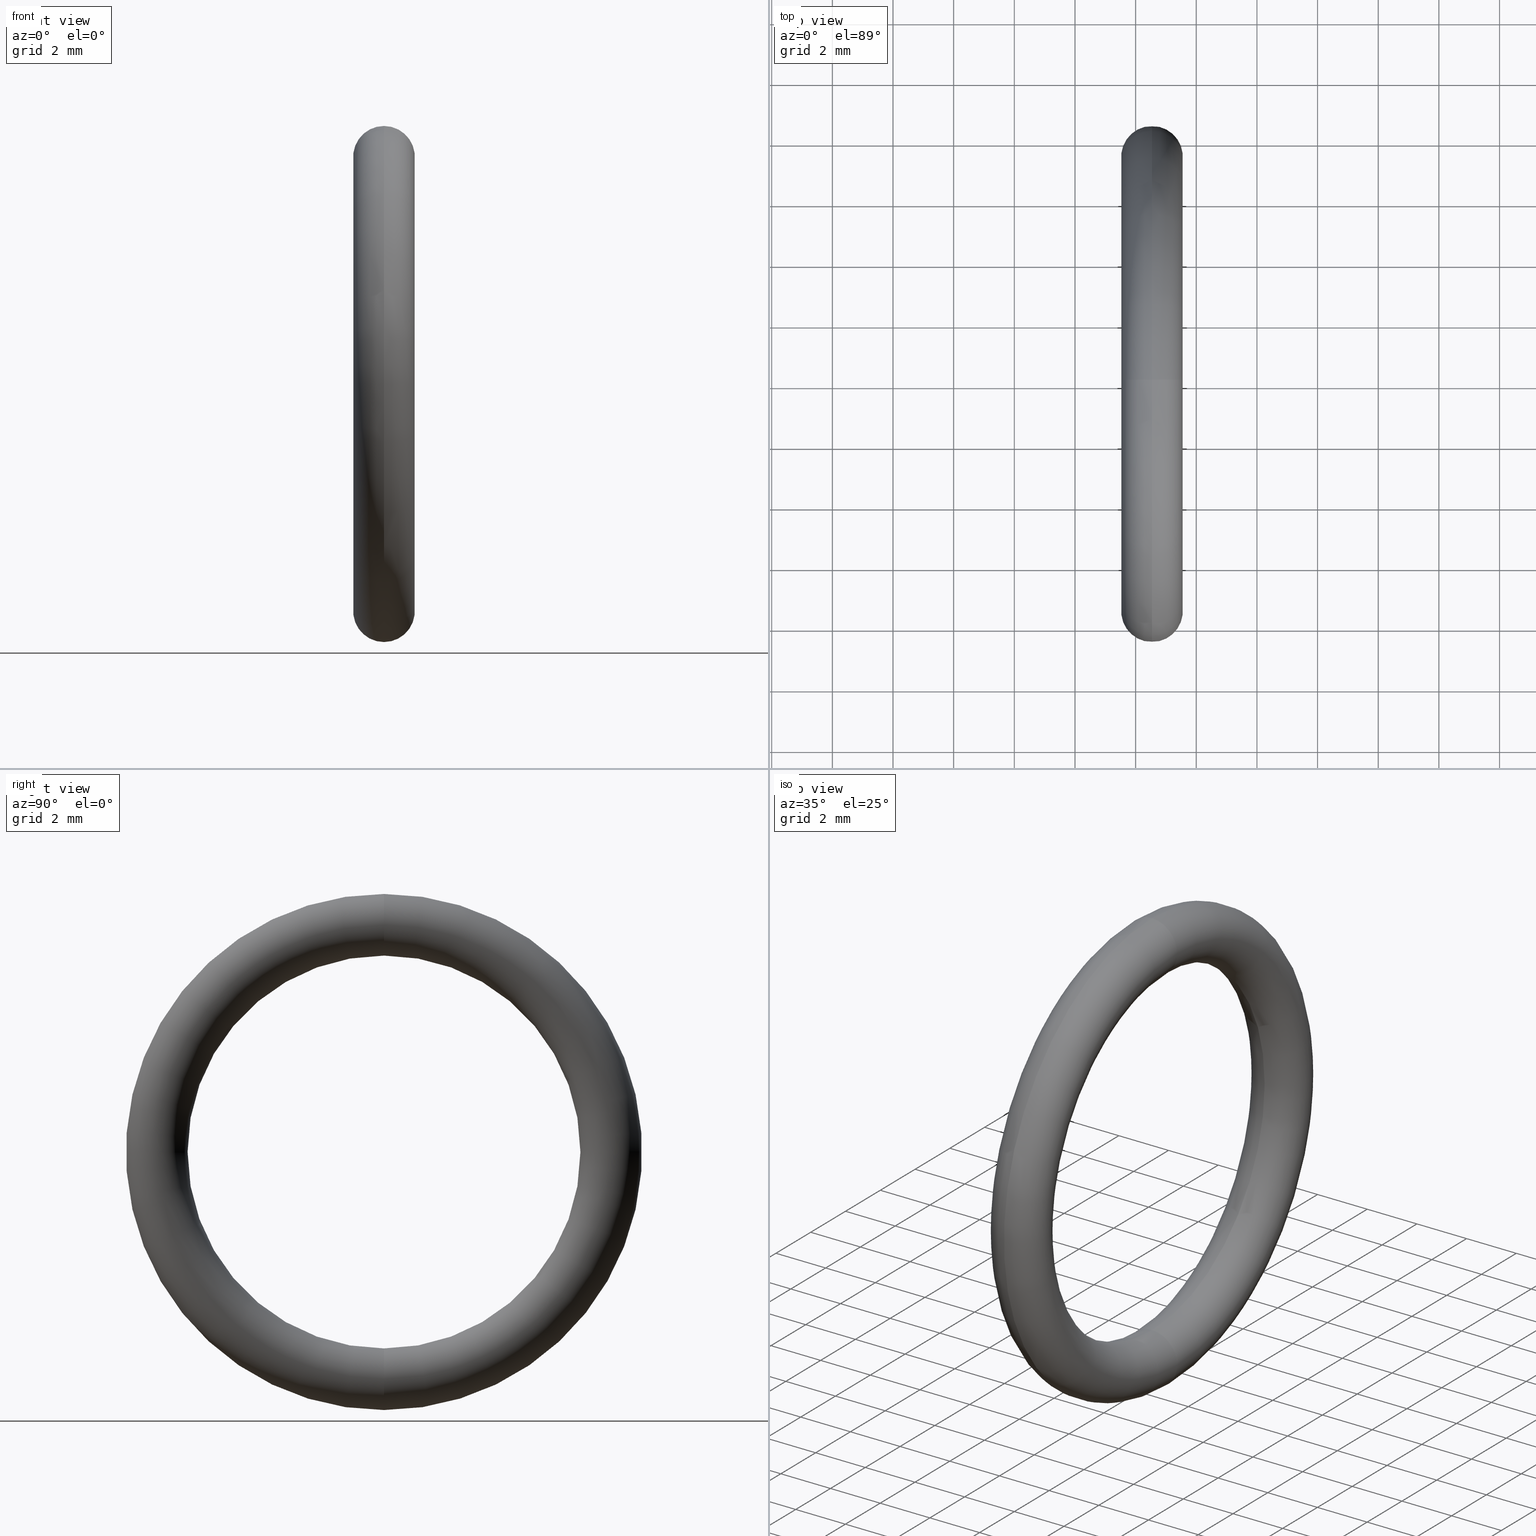
[diagram: canonical four-view strip — front | top / right | iso, engineering-drawing reading convention]
A machine part, canonical four-view strip (front | top / right | iso — engineering-drawing reading convention). The complete STEP part file that produces these views, byte-faithful:
ISO-10303-21;
HEADER;
FILE_DESCRIPTION (( 'STEP AP203' ),
    '1' );
FILE_NAME ('OR-38-VT.STEP',
    '2008-06-24T09:33:41',
    ( 'BSI05' ),
    ( 'BAYSTATE' ),
    'SwSTEP 2.0',
    'SolidWorks 2007',
    '' );
FILE_SCHEMA (( 'CONFIG_CONTROL_DESIGN' ));
ENDSEC;

DATA;
#1 =( GEOMETRIC_REPRESENTATION_CONTEXT ( 3 ) GLOBAL_UNCERTAINTY_ASSIGNED_CONTEXT ( ( #2 ) ) GLOBAL_UNIT_ASSIGNED_CONTEXT ( ( #5, #4, #3 ) ) REPRESENTATION_CONTEXT ( 'NONE', 'WORKASPACE' ) );
#2 = UNCERTAINTY_MEASURE_WITH_UNIT (LENGTH_MEASURE( 1.000000000000000100E-005 ), #5, 'distance_accuracy_value', 'NONE');
#3 =( NAMED_UNIT ( * ) SI_UNIT ( $, .STERADIAN. ) SOLID_ANGLE_UNIT ( ) );
#4 =( NAMED_UNIT ( * ) PLANE_ANGLE_UNIT ( ) SI_UNIT ( $, .RADIAN. ) );
#5 =( CONVERSION_BASED_UNIT ( 'INCH', #6 ) LENGTH_UNIT ( ) NAMED_UNIT ( #7 ) );
#6 = LENGTH_MEASURE_WITH_UNIT ( LENGTH_MEASURE( 0.02539999999999999900 ), #68 );
#7 = DIMENSIONAL_EXPONENTS ( 1.000000000000000000, 0.0000000000000000000, 0.0000000000000000000, 0.0000000000000000000, 0.0000000000000000000, 0.0000000000000000000, 0.0000000000000000000 ) ;
#8 = DIRECTION ( 'NONE',  ( 0.0000000000000000000, 0.0000000000000000000, -1.000000000000000000 ) ) ;
#9 = DIRECTION ( 'NONE',  ( 0.0000000000000000000, -1.000000000000000000, 0.0000000000000000000 ) ) ;
#10 = AXIS2_PLACEMENT_3D ( 'NONE', #28, #9, #8 ) ;
#11 = CIRCLE ( 'NONE', #10, 0.03999999999999998000 ) ;
#12 = DIRECTION ( 'NONE',  ( -1.000000000000000000, 0.0000000000000000000, 0.0000000000000000000 ) ) ;
#13 = CARTESIAN_POINT ( 'NONE',  ( 0.1000000000000000500, 0.0000000000000000000, 0.0000000000000000000 ) ) ;
#14 = AXIS2_PLACEMENT_3D ( 'NONE', #13, #12, #103 ) ;
#15 = CIRCLE ( 'NONE', #14, 0.3349999999999999600 ) ;
#16 = FACE_OUTER_BOUND ( 'NONE', #53, .T. ) ;
#17 = CARTESIAN_POINT ( 'NONE',  ( 0.1000000000000000500, 4.102566777143632800E-017, -0.3349999999999999600 ) ) ;
#18 = CARTESIAN_POINT ( 'NONE',  ( 0.1000000000000000500, 3.122849337825750500E-017, -0.2550000000000000000 ) ) ;
#19 = DIRECTION ( 'NONE',  ( 0.0000000000000000000, -1.224646799147353900E-016, 1.000000000000000000 ) ) ;
#20 = DIRECTION ( 'NONE',  ( 0.0000000000000000000, 1.000000000000000000, 1.224646799147353200E-016 ) ) ;
#21 = CARTESIAN_POINT ( 'NONE',  ( 0.1000000000000000500, 3.612708057484692000E-017, -0.2949999999999999800 ) ) ;
#22 = AXIS2_PLACEMENT_3D ( 'NONE', #21, #20, #19 ) ;
#23 = VERTEX_POINT ( 'NONE', #45 ) ;
#24 = DIRECTION ( 'NONE',  ( 0.0000000000000000000, 0.0000000000000000000, 1.000000000000000000 ) ) ;
#25 = DIRECTION ( 'NONE',  ( -1.000000000000000000, 0.0000000000000000000, 0.0000000000000000000 ) ) ;
#26 = AXIS2_PLACEMENT_3D ( 'NONE', #33, #25, #24 ) ;
#27 = CIRCLE ( 'NONE', #26, 0.2550000000000000000 ) ;
#28 = CARTESIAN_POINT ( 'NONE',  ( 0.1000000000000000500, 0.0000000000000000000, 0.2949999999999999800 ) ) ;
#29 = DIRECTION ( 'NONE',  ( 0.0000000000000000000, 0.0000000000000000000, 1.000000000000000000 ) ) ;
#30 = DIRECTION ( 'NONE',  ( -1.000000000000000000, 0.0000000000000000000, 0.0000000000000000000 ) ) ;
#31 = AXIS2_PLACEMENT_3D ( 'NONE', #39, #30, #29 ) ;
#32 = CIRCLE ( 'NONE', #31, 0.2550000000000000000 ) ;
#33 = CARTESIAN_POINT ( 'NONE',  ( 0.1000000000000000500, 0.0000000000000000000, 0.0000000000000000000 ) ) ;
#34 = DIRECTION ( 'NONE',  ( 0.0000000000000000000, 0.0000000000000000000, 1.000000000000000000 ) ) ;
#35 = DIRECTION ( 'NONE',  ( -1.000000000000000000, 0.0000000000000000000, 0.0000000000000000000 ) ) ;
#36 = CARTESIAN_POINT ( 'NONE',  ( 0.1000000000000000500, 0.0000000000000000000, 0.0000000000000000000 ) ) ;
#37 = AXIS2_PLACEMENT_3D ( 'NONE', #36, #35, #34 ) ;
#38 = CIRCLE ( 'NONE', #37, 0.3349999999999999600 ) ;
#39 = CARTESIAN_POINT ( 'NONE',  ( 0.1000000000000000500, 0.0000000000000000000, 0.0000000000000000000 ) ) ;
#40 = DIRECTION ( 'NONE',  ( 0.0000000000000000000, 0.0000000000000000000, 1.000000000000000000 ) ) ;
#41 = DIRECTION ( 'NONE',  ( -1.000000000000000000, 0.0000000000000000000, 0.0000000000000000000 ) ) ;
#42 = CARTESIAN_POINT ( 'NONE',  ( 0.1000000000000000500, 0.0000000000000000000, 0.0000000000000000000 ) ) ;
#43 = AXIS2_PLACEMENT_3D ( 'NONE', #42, #41, #40 ) ;
#44 = CIRCLE ( 'NONE', #22, 0.03999999999999998000 ) ;
#45 = CARTESIAN_POINT ( 'NONE',  ( 0.1000000000000000500, 0.0000000000000000000, 0.2550000000000000000 ) ) ;
#46 = ORIENTED_EDGE ( 'NONE', *, *, #113, .T. ) ;
#47 = EDGE_CURVE ( 'NONE', #50, #48, #44, .T. ) ;
#48 = VERTEX_POINT ( 'NONE', #18 ) ;
#49 = ORIENTED_EDGE ( 'NONE', *, *, #47, .F. ) ;
#50 = VERTEX_POINT ( 'NONE', #17 ) ;
#51 = EDGE_CURVE ( 'NONE', #50, #57, #15, .T. ) ;
#52 = ADVANCED_FACE ( 'NONE', ( #16 ), #100, .T. ) ;
#53 = EDGE_LOOP ( 'NONE', ( #49, #114, #46, #111 ) ) ;
#54 = ORIENTED_EDGE ( 'NONE', *, *, #112, .T. ) ;
#55 = CLOSED_SHELL ( 'NONE', ( #52, #81, #78, #75 ) ) ;
#56 = EDGE_LOOP ( 'NONE', ( #86, #76, #54, #72 ) ) ;
#57 = VERTEX_POINT ( 'NONE', #101 ) ;
#58 = DIRECTION ( 'NONE',  ( 0.0000000000000000000, 0.0000000000000000000, 1.000000000000000000 ) ) ;
#59 = DIRECTION ( 'NONE',  ( -1.000000000000000000, 0.0000000000000000000, 0.0000000000000000000 ) ) ;
#60 = AXIS2_PLACEMENT_3D ( 'NONE', #63, #59, #58 ) ;
#61 = TOROIDAL_SURFACE ( 'NONE', #60, 0.2949999999999999800, 0.04000000000000000100 ) ;
#62 = FACE_OUTER_BOUND ( 'NONE', #79, .T. ) ;
#63 = CARTESIAN_POINT ( 'NONE',  ( 0.1000000000000000500, 0.0000000000000000000, 0.0000000000000000000 ) ) ;
#64 = DIRECTION ( 'NONE',  ( 0.0000000000000000000, 0.0000000000000000000, -1.000000000000000000 ) ) ;
#65 = DIRECTION ( 'NONE',  ( 0.0000000000000000000, -1.000000000000000000, 0.0000000000000000000 ) ) ;
#66 = AXIS2_PLACEMENT_3D ( 'NONE', #96, #65, #64 ) ;
#67 = FACE_OUTER_BOUND ( 'NONE', #56, .T. ) ;
#68 =( LENGTH_UNIT ( ) NAMED_UNIT ( * ) SI_UNIT ( $, .METRE. ) );
#69 = ORIENTED_EDGE ( 'NONE', *, *, #88, .T. ) ;
#70 = EDGE_LOOP ( 'NONE', ( #71, #69, #87, #83 ) ) ;
#71 = ORIENTED_EDGE ( 'NONE', *, *, #113, .F. ) ;
#72 = ORIENTED_EDGE ( 'NONE', *, *, #74, .T. ) ;
#73 = EDGE_CURVE ( 'NONE', #48, #50, #95, .T. ) ;
#74 = EDGE_CURVE ( 'NONE', #23, #57, #90, .T. ) ;
#75 = ADVANCED_FACE ( 'NONE', ( #67 ), #61, .T. ) ;
#76 = ORIENTED_EDGE ( 'NONE', *, *, #73, .F. ) ;
#77 = ORIENTED_EDGE ( 'NONE', *, *, #89, .T. ) ;
#78 = ADVANCED_FACE ( 'NONE', ( #62 ), #110, .T. ) ;
#79 = EDGE_LOOP ( 'NONE', ( #85, #80, #77, #84 ) ) ;
#80 = ORIENTED_EDGE ( 'NONE', *, *, #74, .F. ) ;
#81 = ADVANCED_FACE ( 'NONE', ( #109 ), #104, .T. ) ;
#82 = MANIFOLD_SOLID_BREP ( 'NONE', #55 ) ;
#83 = ORIENTED_EDGE ( 'NONE', *, *, #89, .F. ) ;
#84 = ORIENTED_EDGE ( 'NONE', *, *, #73, .T. ) ;
#85 = ORIENTED_EDGE ( 'NONE', *, *, #88, .F. ) ;
#86 = ORIENTED_EDGE ( 'NONE', *, *, #51, .F. ) ;
#87 = ORIENTED_EDGE ( 'NONE', *, *, #47, .T. ) ;
#88 = EDGE_CURVE ( 'NONE', #57, #50, #38, .T. ) ;
#89 = EDGE_CURVE ( 'NONE', #23, #48, #32, .T. ) ;
#90 = CIRCLE ( 'NONE', #66, 0.03999999999999998000 ) ;
#91 = DIRECTION ( 'NONE',  ( 0.0000000000000000000, -1.224646799147353900E-016, 1.000000000000000000 ) ) ;
#92 = DIRECTION ( 'NONE',  ( 0.0000000000000000000, 1.000000000000000000, 1.224646799147353200E-016 ) ) ;
#93 = CARTESIAN_POINT ( 'NONE',  ( 0.1000000000000000500, 3.612708057484692000E-017, -0.2949999999999999800 ) ) ;
#94 = AXIS2_PLACEMENT_3D ( 'NONE', #93, #92, #91 ) ;
#95 = CIRCLE ( 'NONE', #94, 0.03999999999999998000 ) ;
#96 = CARTESIAN_POINT ( 'NONE',  ( 0.1000000000000000500, 0.0000000000000000000, 0.2949999999999999800 ) ) ;
#97 = DIRECTION ( 'NONE',  ( 0.0000000000000000000, 0.0000000000000000000, 1.000000000000000000 ) ) ;
#98 = DIRECTION ( 'NONE',  ( -1.000000000000000000, 0.0000000000000000000, 0.0000000000000000000 ) ) ;
#99 = AXIS2_PLACEMENT_3D ( 'NONE', #102, #98, #97 ) ;
#100 = TOROIDAL_SURFACE ( 'NONE', #99, 0.2949999999999999800, 0.04000000000000000100 ) ;
#101 = CARTESIAN_POINT ( 'NONE',  ( 0.1000000000000000500, 0.0000000000000000000, 0.3349999999999999600 ) ) ;
#102 = CARTESIAN_POINT ( 'NONE',  ( 0.1000000000000000500, 0.0000000000000000000, 0.0000000000000000000 ) ) ;
#103 = DIRECTION ( 'NONE',  ( 0.0000000000000000000, 0.0000000000000000000, 1.000000000000000000 ) ) ;
#104 = TOROIDAL_SURFACE ( 'NONE', #43, 0.2949999999999999800, 0.04000000000000000100 ) ;
#105 = DIRECTION ( 'NONE',  ( 0.0000000000000000000, 0.0000000000000000000, 1.000000000000000000 ) ) ;
#106 = DIRECTION ( 'NONE',  ( -1.000000000000000000, 0.0000000000000000000, 0.0000000000000000000 ) ) ;
#107 = CARTESIAN_POINT ( 'NONE',  ( 0.1000000000000000500, 0.0000000000000000000, 0.0000000000000000000 ) ) ;
#108 = AXIS2_PLACEMENT_3D ( 'NONE', #107, #106, #105 ) ;
#109 = FACE_OUTER_BOUND ( 'NONE', #70, .T. ) ;
#110 = TOROIDAL_SURFACE ( 'NONE', #108, 0.2949999999999999800, 0.04000000000000000100 ) ;
#111 = ORIENTED_EDGE ( 'NONE', *, *, #112, .F. ) ;
#112 = EDGE_CURVE ( 'NONE', #48, #23, #27, .T. ) ;
#113 = EDGE_CURVE ( 'NONE', #57, #23, #11, .T. ) ;
#114 = ORIENTED_EDGE ( 'NONE', *, *, #51, .T. ) ;
#115 = PERSON_AND_ORGANIZATION ( #172, #192 ) ;
#116 = CC_DESIGN_APPROVAL ( #124, ( #127 ) ) ;
#117 = APPROVAL_DATE_TIME ( #118, #124 ) ;
#118 = DATE_AND_TIME ( #119, #120 ) ;
#119 = CALENDAR_DATE ( 2008, 24, 6 ) ;
#120 = LOCAL_TIME ( 15, 3, 41.00000000000000000, #121 ) ;
#121 = COORDINATED_UNIVERSAL_TIME_OFFSET ( 5, 30, .AHEAD. ) ;
#122 = APPROVAL_PERSON_ORGANIZATION ( #126, #124, #123 ) ;
#123 = APPROVAL_ROLE ( '' ) ;
#124 = APPROVAL ( #125, 'UNSPECIFIED' ) ;
#125 = APPROVAL_STATUS ( 'not_yet_approved' ) ;
#126 = PERSON_AND_ORGANIZATION ( #172, #192 ) ;
#127 = PRODUCT_DEFINITION_FORMATION_WITH_SPECIFIED_SOURCE ( 'ANY', '', #173, .NOT_KNOWN. ) ;
#128 = PRODUCT_RELATED_PRODUCT_CATEGORY ( 'detail', '', ( #173 ) ) ;
#129 = CC_DESIGN_SECURITY_CLASSIFICATION ( #150, ( #127 ) ) ;
#130 = CC_DESIGN_APPROVAL ( #138, ( #150 ) ) ;
#131 = APPROVAL_DATE_TIME ( #132, #138 ) ;
#132 = DATE_AND_TIME ( #133, #134 ) ;
#133 = CALENDAR_DATE ( 2008, 24, 6 ) ;
#134 = LOCAL_TIME ( 15, 3, 41.00000000000000000, #135 ) ;
#135 = COORDINATED_UNIVERSAL_TIME_OFFSET ( 5, 30, .AHEAD. ) ;
#136 = APPROVAL_PERSON_ORGANIZATION ( #140, #138, #137 ) ;
#137 = APPROVAL_ROLE ( '' ) ;
#138 = APPROVAL ( #139, 'UNSPECIFIED' ) ;
#139 = APPROVAL_STATUS ( 'not_yet_approved' ) ;
#140 = PERSON_AND_ORGANIZATION ( #172, #192 ) ;
#141 = CC_DESIGN_DATE_AND_TIME_ASSIGNMENT ( #143, #142, ( #150 ) ) ;
#142 = DATE_TIME_ROLE ( 'classification_date' ) ;
#143 = DATE_AND_TIME ( #144, #145 ) ;
#144 = CALENDAR_DATE ( 2008, 24, 6 ) ;
#145 = LOCAL_TIME ( 15, 3, 41.00000000000000000, #146 ) ;
#146 = COORDINATED_UNIVERSAL_TIME_OFFSET ( 5, 30, .AHEAD. ) ;
#147 = CC_DESIGN_PERSON_AND_ORGANIZATION_ASSIGNMENT ( #149, #148, ( #150 ) ) ;
#148 = PERSON_AND_ORGANIZATION_ROLE ( 'classification_officer' ) ;
#149 = PERSON_AND_ORGANIZATION ( #172, #192 ) ;
#150 = SECURITY_CLASSIFICATION ( '', '', #151 ) ;
#151 = SECURITY_CLASSIFICATION_LEVEL ( 'unclassified' ) ;
#152 = CC_DESIGN_PERSON_AND_ORGANIZATION_ASSIGNMENT ( #154, #153, ( #127 ) ) ;
#153 = PERSON_AND_ORGANIZATION_ROLE ( 'design_supplier' ) ;
#154 = PERSON_AND_ORGANIZATION ( #172, #192 ) ;
#155 = CC_DESIGN_PERSON_AND_ORGANIZATION_ASSIGNMENT ( #115, #156, ( #127 ) ) ;
#156 = PERSON_AND_ORGANIZATION_ROLE ( 'creator' ) ;
#157 = CC_DESIGN_APPROVAL ( #165, ( #168 ) ) ;
#158 = APPROVAL_DATE_TIME ( #159, #165 ) ;
#159 = DATE_AND_TIME ( #160, #161 ) ;
#160 = CALENDAR_DATE ( 2008, 24, 6 ) ;
#161 = LOCAL_TIME ( 15, 3, 41.00000000000000000, #162 ) ;
#162 = COORDINATED_UNIVERSAL_TIME_OFFSET ( 5, 30, .AHEAD. ) ;
#163 = APPROVAL_PERSON_ORGANIZATION ( #167, #165, #164 ) ;
#164 = APPROVAL_ROLE ( '' ) ;
#165 = APPROVAL ( #166, 'UNSPECIFIED' ) ;
#166 = APPROVAL_STATUS ( 'not_yet_approved' ) ;
#167 = PERSON_AND_ORGANIZATION ( #172, #192 ) ;
#168 = PRODUCT_DEFINITION ( 'UNKNOWN', '', #127, #169 ) ;
#169 = DESIGN_CONTEXT ( 'detailed design', #171, 'design' ) ;
#170 = APPLICATION_PROTOCOL_DEFINITION ( 'international standard', 'config_control_design', 1994, #171 ) ;
#171 = APPLICATION_CONTEXT ( 'configuration controlled 3d designs of mechanical parts and assemblies' ) ;
#172 = PERSON ( 'UNSPECIFIED', 'UNSPECIFIED', 'UNSPECIFIED', ('UNSPECIFIED'), ('UNSPECIFIED'), ('UNSPECIFIED') ) ;
#173 = PRODUCT ( 'OR-38-VT', 'OR-38-VT', '', ( #174 ) ) ;
#174 = MECHANICAL_CONTEXT ( 'NONE', #176, 'mechanical' ) ;
#175 = APPLICATION_PROTOCOL_DEFINITION ( 'international standard', 'config_control_design', 1994, #176 ) ;
#176 = APPLICATION_CONTEXT ( 'configuration controlled 3d designs of mechanical parts and assemblies' ) ;
#177 = AXIS2_PLACEMENT_3D ( 'NONE', #188, #195, #194 ) ;
#178 = PRODUCT_DEFINITION_SHAPE ( 'NONE', 'NONE',  #168 ) ;
#179 = CC_DESIGN_DATE_AND_TIME_ASSIGNMENT ( #181, #180, ( #168 ) ) ;
#180 = DATE_TIME_ROLE ( 'creation_date' ) ;
#181 = DATE_AND_TIME ( #182, #183 ) ;
#182 = CALENDAR_DATE ( 2008, 24, 6 ) ;
#183 = LOCAL_TIME ( 15, 3, 41.00000000000000000, #184 ) ;
#184 = COORDINATED_UNIVERSAL_TIME_OFFSET ( 5, 30, .AHEAD. ) ;
#185 = CC_DESIGN_PERSON_AND_ORGANIZATION_ASSIGNMENT ( #187, #186, ( #168 ) ) ;
#186 = PERSON_AND_ORGANIZATION_ROLE ( 'creator' ) ;
#187 = PERSON_AND_ORGANIZATION ( #172, #192 ) ;
#188 = CARTESIAN_POINT ( 'NONE',  ( 0.0000000000000000000, 0.0000000000000000000, 0.0000000000000000000 ) ) ;
#189 = CC_DESIGN_PERSON_AND_ORGANIZATION_ASSIGNMENT ( #191, #190, ( #173 ) ) ;
#190 = PERSON_AND_ORGANIZATION_ROLE ( 'design_owner' ) ;
#191 = PERSON_AND_ORGANIZATION ( #172, #192 ) ;
#192 = ORGANIZATION ( 'UNSPECIFIED', 'UNSPECIFIED', '' ) ;
#193 = SHAPE_DEFINITION_REPRESENTATION ( #178, #196 ) ;
#194 = DIRECTION ( 'NONE',  ( 1.000000000000000000, 0.0000000000000000000, 0.0000000000000000000 ) ) ;
#195 = DIRECTION ( 'NONE',  ( 0.0000000000000000000, 0.0000000000000000000, 1.000000000000000000 ) ) ;
#196 = ADVANCED_BREP_SHAPE_REPRESENTATION ( 'OR-38-VT', ( #82, #177 ), #1 ) ;
ENDSEC;
END-ISO-10303-21;
